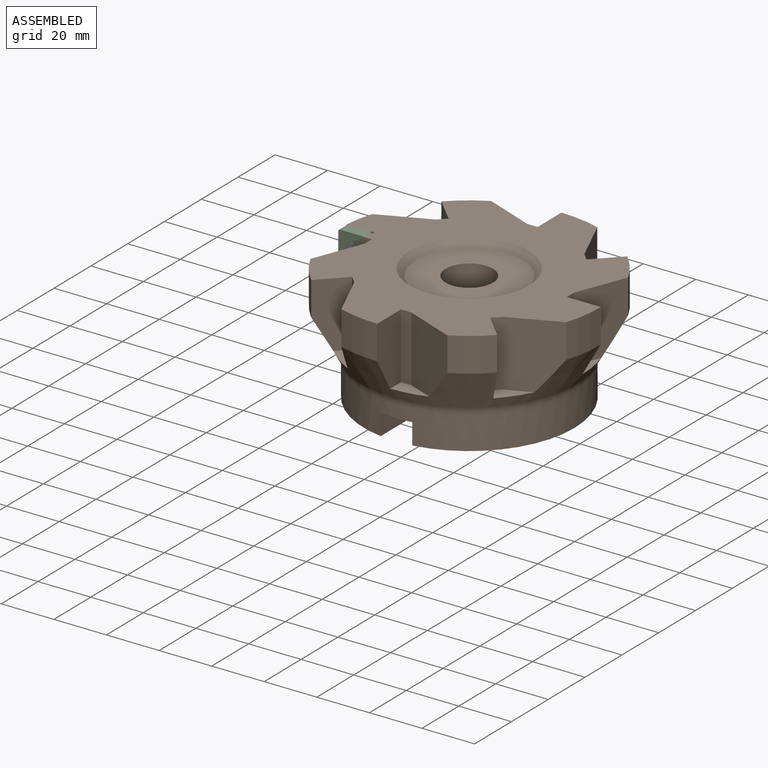
[diagram: assembled view]
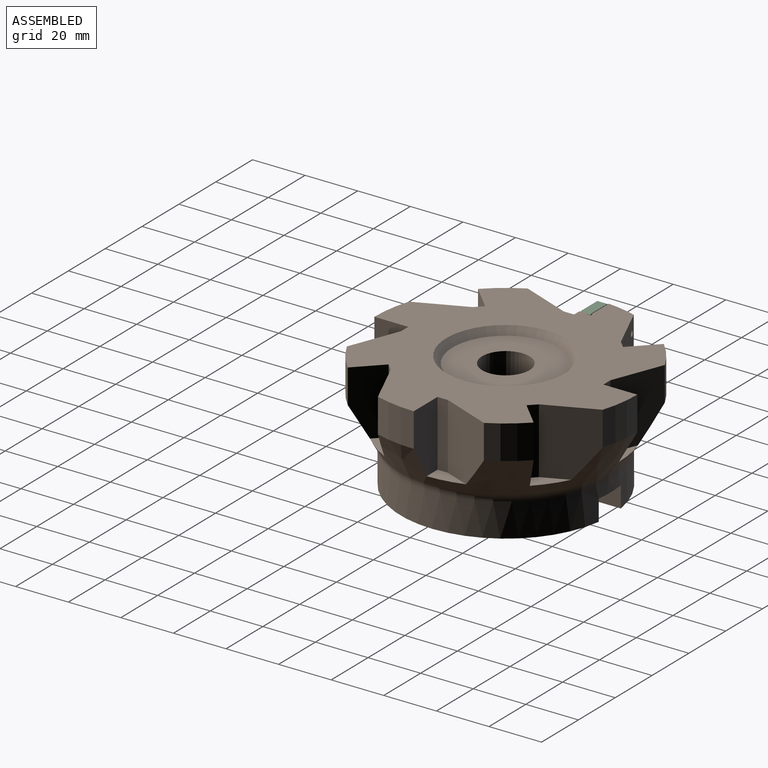
[diagram: assembled view, second angle]
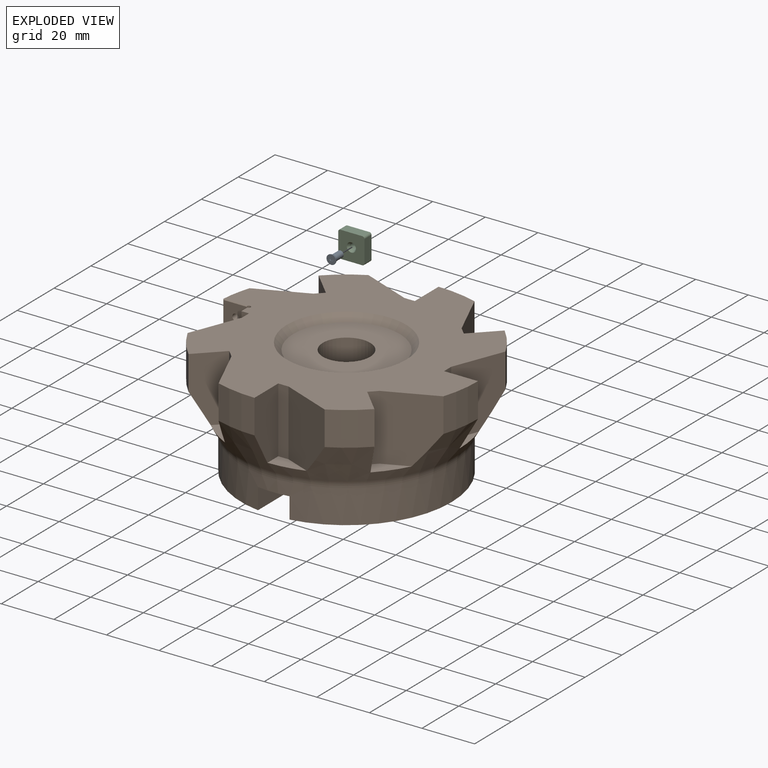
[diagram: exploded view]
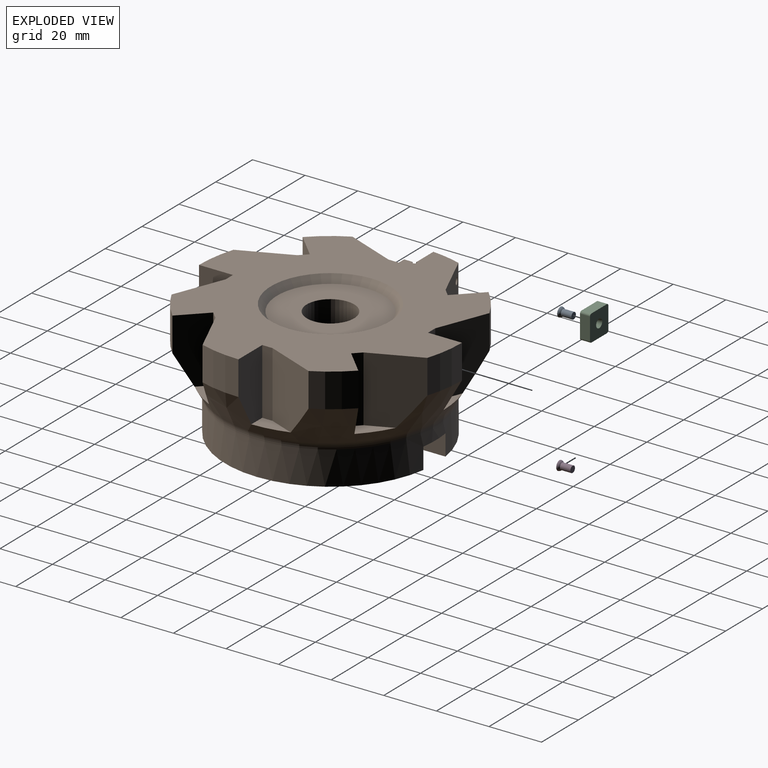
[diagram: exploded view, second angle]
ASSEMBLY  parts=4 mates=3
PART A: 37 faces, bbox 3.6x5x3.6 mm
  f0: plane 3.6x3.6mm, normal (0,-1,0), area 9.1mm2, adj f3,f4,f5,f6,f7,f8,f9,f10
  f1: plane 2.5x2.5mm, normal (0,1,0), area 4.9mm2, adj f2
  f2: cylinder r=1.25mm len=4mm, axis (0,-1,0), area 31.4mm2, adj f1,f3
  f3: torus R=0.36mm, axis (0,-1,0), area 11.7mm2, adj f0,f2
  f4: plane 0.4x0.18mm, normal (0.71,0,0.71), area 0.1mm2, adj f0,f5,f35,f36
  f5: cylinder r=0.5mm len=0.4mm, axis (0,-1,0), area 0.1mm2, adj f0,f4,f6,f36
  f6: plane 0.4x0.25mm, normal (0,0,-1), area 0.1mm2, adj f0,f5,f7,f36
  f7: cylinder r=0.75mm len=0.4mm, axis (0,-1,0), area 0.1mm2, adj f0,f6,f8,f36
  f8: plane 0.4x0.25mm, normal (0,0,1), area 0.1mm2, adj f0,f7,f9,f36
  f9: cylinder r=0.5mm len=0.4mm, axis (0,-1,0), area 0.1mm2, adj f0,f8,f10,f36
  f10: plane 0.4x0.18mm, normal (0.71,0,-0.71), area 0.1mm2, adj f0,f9,f11,f36
  f11: cylinder r=0.75mm len=0.4mm, axis (0,-1,0), area 0.1mm2, adj f0,f10,f12,f36
  f12: plane 0.4x0.18mm, normal (-0.71,0,0.71), area 0.1mm2, adj f0,f11,f13,f36
  f13: cylinder r=0.5mm len=0.4mm, axis (0,-1,0), area 0.1mm2, adj f0,f12,f14,f36
  f14: plane 0.4x0.25mm, normal (1,0,0), area 0.1mm2, adj f0,f13,f15,f36
  f15: cylinder r=0.75mm len=0.4mm, axis (0,-1,0), area 0.1mm2, adj f0,f14,f16,f36
  f16: plane 0.4x0.25mm, normal (-1,0,0), area 0.1mm2, adj f0,f15,f17,f36
  f17: cylinder r=0.5mm len=0.4mm, axis (0,-1,0), area 0.1mm2, adj f0,f16,f18,f36
  f18: plane 0.4x0.18mm, normal (0.71,0,0.71), area 0.1mm2, adj f0,f17,f19,f36
  f19: cylinder r=0.75mm len=0.4mm, axis (0,-1,0), area 0.1mm2, adj f0,f18,f20,f36
  f20: plane 0.4x0.18mm, normal (-0.71,0,-0.71), area 0.1mm2, adj f0,f19,f21,f36
  f21: cylinder r=0.5mm len=0.4mm, axis (0,-1,0), area 0.1mm2, adj f0,f20,f22,f36
  f22: plane 0.4x0.25mm, normal (0,0,1), area 0.1mm2, adj f0,f21,f23,f36
  f23: cylinder r=0.75mm len=0.4mm, axis (0,-1,0), area 0.1mm2, adj f0,f22,f24,f36
  f24: plane 0.4x0.25mm, normal (0,0,-1), area 0.1mm2, adj f0,f23,f25,f36
  f25: cylinder r=0.5mm len=0.4mm, axis (0,-1,0), area 0.1mm2, adj f0,f24,f26,f36
  f26: plane 0.4x0.18mm, normal (-0.71,0,0.71), area 0.1mm2, adj f0,f25,f27,f36
  f27: cylinder r=0.75mm len=0.4mm, axis (0,-1,0), area 0.1mm2, adj f0,f26,f28,f36
  f28: plane 0.4x0.18mm, normal (0.71,0,-0.71), area 0.1mm2, adj f0,f27,f29,f36
  f29: cylinder r=0.5mm len=0.4mm, axis (0,-1,0), area 0.1mm2, adj f0,f28,f30,f36
  f30: plane 0.4x0.25mm, normal (-1,0,0), area 0.1mm2, adj f0,f29,f31,f36
  f31: cylinder r=0.75mm len=0.4mm, axis (0,-1,0), area 0.1mm2, adj f0,f30,f32,f36
  f32: plane 0.4x0.25mm, normal (1,0,0), area 0.1mm2, adj f0,f31,f33,f36
  f33: cylinder r=0.5mm len=0.4mm, axis (0,-1,0), area 0.1mm2, adj f0,f32,f34,f36
  f34: plane 0.4x0.18mm, normal (-0.71,0,-0.71), area 0.1mm2, adj f0,f33,f35,f36
  f35: cylinder r=0.75mm len=0.4mm, axis (0,-1,0), area 0.1mm2, adj f0,f4,f34,f36
  f36: plane 1.5x1.5mm, normal (0,-1,0), area 1.1mm2, adj f4,f5,f6,f7,f8,f9,f10,f11
PART B: 76 faces, bbox 100.8x100.8x45 mm
  f0: cylinder r=50mm len=15.33mm, axis (0,0,-1), area 158mm2, adj f1,f3,f8,f12,f52,f56,f75
  f1: cylinder r=0.75mm len=20.39mm, axis (-1,0,0), area 82.1mm2, adj f0,f3,f4,f5,f7,f66,f67,f73
  f2: plane 9.12x0.26mm, normal (0,-0.69,0.72), area 3.1mm2, adj f7,f8,f74,f75
  f3: plane 3.5x3.25mm, normal (0,0,1), area 11.3mm2, adj f0,f1,f52,f66
  f4: plane 3.27x3mm, normal (0,0,1), area 9.8mm2, adj f1,f52,f66,f67
  f5: plane 3.5x3.25mm, normal (0,0,1), area 11.4mm2, adj f1,f6,f52,f67
  f6: plane 3.5x3.25mm, normal (-1,0,0), area 11.4mm2, adj f5,f52,f68,f74
  f7: plane 9.02x8.83mm, normal (0,-1,0), area 74.5mm2, adj f1,f2,f72,f74,f75
  f8: plane 100x99.82mm, normal (0,0,1), area 4730mm2, adj f0,f2,f13,f14,f15,f16,f17,f18
  f9: cylinder r=13.5mm len=27mm, axis (0,0,-1), area 1956.5mm2, adj f10,f25,f26,f60,f61,f62,f63,f64
  f10: plane 79.1x34mm, normal (0,0,-1), area 1905.3mm2, adj f9,f11,f62,f63
  f11: cylinder r=40mm len=80mm, axis (0,0,-1), area 3016.3mm2, adj f10,f26,f27,f60,f61,f62,f63,f64
  f12: cone r=40.68mm half-angle=30.2deg, axis (0,0,1), area 3212.8mm2, adj f0,f13,f14,f15,f16,f17,f18,f19
  f13: cylinder r=50mm len=12.94mm, axis (0,0,-1), area 201.7mm2, adj f8,f12,f50,f53
  f14: cylinder r=50mm len=12.94mm, axis (0,0,-1), area 201.7mm2, adj f8,f12,f40,f58
  f15: cylinder r=50mm len=15.33mm, axis (0,0,-1), area 201.7mm2, adj f8,f12,f44,f48
  f16: cylinder r=50mm len=12.94mm, axis (0,0,-1), area 201.7mm2, adj f8,f12,f34,f45
  f17: cylinder r=50mm len=15.33mm, axis (0,0,-1), area 201.7mm2, adj f8,f12,f36,f42
  f18: cylinder r=50mm len=12.94mm, axis (0,0,-1), area 201.7mm2, adj f8,f12,f29,f38
  f19: cylinder r=50mm len=15.33mm, axis (0,0,-1), area 201.7mm2, adj f8,f12,f28,f32
  f20: cone r=22.65mm half-angle=42.3deg, axis (0,0,1), area 471.9mm2, adj f8,f21
  f21: plane 40.59x40.59mm, normal (0,0,1), area 1039.4mm2, adj f20,f22
  f22: cylinder r=9mm len=18mm, axis (0,0,-1), area 585.4mm2, adj f21,f23
  f23: plane 18x18mm, normal (0,0,1), area 204.2mm2, adj f22,f24
  f24: cylinder r=4mm len=8mm, axis (0,0,-1), area 147.8mm2, adj f23,f25
  f25: plane 27x27mm, normal (0,0,-1), area 522.3mm2, adj f9,f24
  f26: plane 79.1x34mm, normal (0,0,-1), area 1905.3mm2, adj f9,f11,f61,f64
  f27: torus R=45mm, axis (0,0,-1), area 666.3mm2, adj f11,f12
  f28: plane 25x12.91mm, normal (0,1,0), area 280.4mm2, adj f8,f12,f19,f30,f31
  f29: plane 25.75x19.64mm, normal (0.93,-0.36,0), area 448.2mm2, adj f8,f12,f18,f30,f31
  f30: plane 25x3.92mm, normal (1,0,0), area 98mm2, adj f8,f28,f29,f31
  f31: plane 13.44x5.89mm, normal (0,0,1), area 51.8mm2, adj f12,f28,f29,f30
  f32: plane 25.75x19.34mm, normal (0.4,-0.92,0), area 448.2mm2, adj f8,f12,f19,f33,f35
  f33: plane 25x2.77mm, normal (0.71,-0.71,0), area 98mm2, adj f8,f32,f34,f35
  f34: plane 25x9.13mm, normal (0.71,0.71,0), area 280.4mm2, adj f8,f12,f16,f33,f35
  f35: plane 12.15x11.03mm, normal (0,0,1), area 51.8mm2, adj f12,f32,f33,f34
  f36: plane 25.75x19.34mm, normal (0.92,0.4,0), area 448.2mm2, adj f8,f12,f17,f37,f39
  f37: plane 25x2.77mm, normal (0.71,0.71,0), area 98mm2, adj f8,f36,f38,f39
  f38: plane 25x9.13mm, normal (-0.71,0.71,0), area 280.4mm2, adj f8,f12,f18,f37,f39
  f39: plane 12.15x11.03mm, normal (0,0,1), area 51.8mm2, adj f12,f36,f37,f38
  f40: plane 25.75x19.64mm, normal (0.36,0.93,0), area 448.2mm2, adj f8,f12,f14,f41,f43
  f41: plane 25x3.92mm, normal (0,1,0), area 98mm2, adj f8,f40,f42,f43
  f42: plane 25x12.91mm, normal (-1,0,0), area 280.4mm2, adj f8,f12,f17,f41,f43
  f43: plane 13.44x5.89mm, normal (0,0,1), area 51.8mm2, adj f12,f40,f41,f42
  f44: plane 25x12.91mm, normal (1,0,0), area 280.4mm2, adj f8,f12,f15,f46,f47
  f45: plane 25.75x19.64mm, normal (-0.36,-0.93,0), area 448.2mm2, adj f8,f12,f16,f46,f47
  f46: plane 25x3.92mm, normal (0,-1,0), area 98mm2, adj f8,f44,f45,f47
  f47: plane 13.44x5.89mm, normal (0,0,1), area 51.8mm2, adj f12,f44,f45,f46
  f48: plane 25.75x19.34mm, normal (-0.92,-0.4,0), area 448.2mm2, adj f8,f12,f15,f49,f51
  f49: plane 25x2.77mm, normal (-0.71,-0.71,0), area 98mm2, adj f8,f48,f50,f51
  f50: plane 25x9.13mm, normal (0.71,-0.71,0), area 280.4mm2, adj f8,f12,f13,f49,f51
  f51: plane 12.15x11.03mm, normal (0,0,1), area 51.8mm2, adj f12,f48,f49,f50
  f52: plane 25x12.91mm, normal (0,-1,0), area 179.4mm2, adj f0,f3,f4,f5,f6,f8,f12,f54
  f53: plane 25.75x19.64mm, normal (-0.93,0.36,0), area 448.2mm2, adj f8,f12,f13,f54,f55
  f54: plane 25x3.92mm, normal (-1,0,0), area 98mm2, adj f8,f52,f53,f55
  f55: plane 13.44x5.89mm, normal (0,0,1), area 51.8mm2, adj f12,f52,f53,f54
  f56: plane 25.75x19.34mm, normal (-0.4,0.92,0), area 442.9mm2, adj f0,f8,f12,f57,f59,f72
  f57: plane 25x2.77mm, normal (-0.71,0.71,0), area 98mm2, adj f8,f56,f58,f59
  f58: plane 25x9.13mm, normal (-0.71,-0.71,0), area 280.4mm2, adj f8,f12,f14,f57,f59
  f59: plane 12.15x11.03mm, normal (0,0,1), area 51.8mm2, adj f12,f56,f57,f58
  f60: plane 27.91x12mm, normal (0,0,-1), area 321.7mm2, adj f9,f11,f61,f62
  f61: plane 27.45x8mm, normal (1,0,0), area 219.6mm2, adj f9,f11,f26,f60
  f62: plane 27.45x8mm, normal (-1,0,0), area 219.6mm2, adj f9,f10,f11,f60
  f63: plane 27.45x8mm, normal (-1,0,0), area 219.6mm2, adj f9,f10,f11,f65
  f64: plane 27.45x8mm, normal (1,0,0), area 219.6mm2, adj f9,f11,f26,f65
  f65: plane 27.91x12mm, normal (0,0,-1), area 321.7mm2, adj f9,f11,f63,f64
  f66: plane 3.27x0.18mm, normal (1,0,0), area 0.6mm2, adj f1,f3,f4,f52
  f67: plane 3.27x0.18mm, normal (-1,0,0), area 0.6mm2, adj f1,f4,f5,f52
  f68: plane 3.27x0.18mm, normal (0,0,1), area 0.6mm2, adj f6,f52,f69,f74
  f69: plane 3.27x3mm, normal (-1,0,0), area 9.8mm2, adj f52,f68,f70,f74
  f70: plane 3.27x0.18mm, normal (0,0,-1), area 0.6mm2, adj f52,f69,f71,f74
  f71: plane 3.5x3.25mm, normal (-1,0,0), area 11.4mm2, adj f8,f52,f70,f74
  f72: cylinder r=1.25mm len=13.01mm, axis (0,-1,0), area 97.9mm2, adj f7,f56
  f73: plane 1.5x1.5mm, normal (-1,0,0), area 1.8mm2, adj f1
  f74: cylinder r=0.75mm len=10mm, axis (0,0,1), area 33.1mm2, adj f1,f2,f6,f7,f8,f68,f69,f70
  f75: plane 9.31x0.27mm, normal (-0.72,-0.69,0), area 3.3mm2, adj f0,f1,f2,f7
PART C: 13 faces, bbox 10x3.8x10 mm
  f0: plane 8.4x3.8mm, normal (1,0,0), area 31.9mm2, adj f4,f5,f6,f9
  f1: plane 8.4x3.8mm, normal (0,0,1), area 31.9mm2, adj f4,f5,f6,f7
  f2: plane 8.4x3.8mm, normal (-1,0,0), area 31.9mm2, adj f4,f5,f7,f8
  f3: plane 8.4x3.8mm, normal (0,0,-1), area 31.9mm2, adj f4,f5,f8,f9
  f4: plane 10x10mm, normal (0,-1,0), area 89.8mm2, adj f0,f1,f2,f3,f6,f7,f8,f9
  f5: plane 10x10mm, normal (0,1,0), area 90.9mm2, adj f0,f1,f2,f3,f6,f7,f8,f9
  f6: cylinder r=0.8mm len=3.8mm, axis (0,-1,0), area 4.8mm2, adj f0,f1,f4,f5
  f7: cylinder r=0.8mm len=3.8mm, axis (0,1,0), area 4.8mm2, adj f1,f2,f4,f5
  f8: cylinder r=0.8mm len=3.8mm, axis (0,-1,0), area 4.8mm2, adj f2,f3,f4,f5
  f9: cylinder r=0.8mm len=3.8mm, axis (0,1,0), area 4.8mm2, adj f0,f3,f4,f5
  f10: cylinder r=1.25mm len=2.5mm, axis (0,-1,0), area 6.3mm2, adj f11,f12
  f11: cone r=1.25mm half-angle=26.6deg, axis (0,-1,0), area 10.5mm2, adj f4,f10
  f12: cone r=1.65mm half-angle=11.3deg, axis (0,1,0), area 18.6mm2, adj f5,f10
PART D: same geometry as A
PLACE A t=(-30.32,-15.69,31.38)mm
PLACE B t=(14.68,-15.34,28.5)mm
PLACE C t=(-30.32,-11.34,31.38)mm
PLACE D at identity
MATE pin_slot C.f10 <-> A.f2  axis (0,-1,0) through (-30.32,-15.14,31.38)mm
MATE slider B.f72 <-> C.f10  axis (0,-1,0) through (-30.32,-11.34,31.38)mm
MATE fastened C.f10 <-> B.f72  axis (0,1,0) through (-30.32,-11.34,31.38)mm
